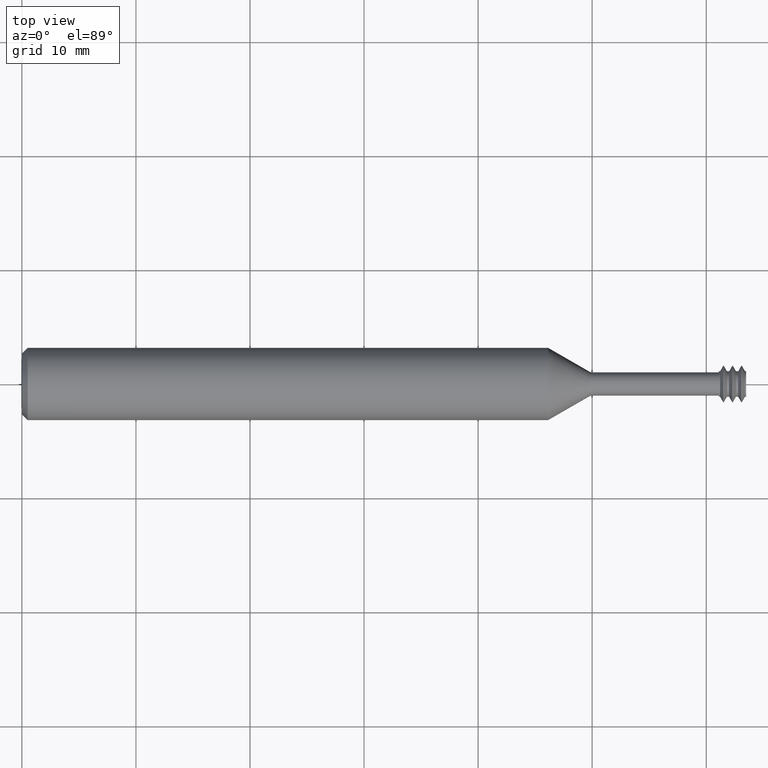
[diagram: clean part render]
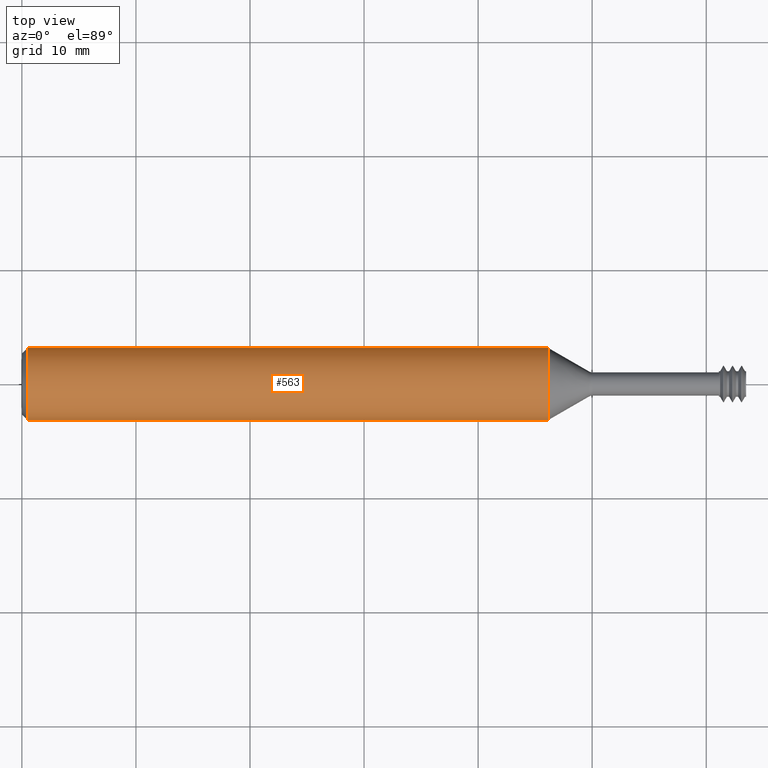
[diagram: same view with one face highlighted and labeled with its STEP entity id]
A machine part, top view. The second image highlights one B-rep face of the part: STEP entity #563.
In plain terms, the highlighted cylindrical surface (edge-blend (fillet) strip) has radius 3.1712 mm, axis along (-1, 0, -0).
Its self-contained STEP definition (entity closure, byte-faithful):
#1 = DIRECTION ( 'NONE',  ( 0.000000000000000000, -1.000000000000000000, 0.000000000000000000 ) ) ;
#7 = CARTESIAN_POINT ( 'NONE',  ( 1.816336759167003656, 0.1248500000000000026, 1.528971528735470422E-17 ) ) ;
#28 = EDGE_CURVE ( 'NONE', #118, #49, #745, .T. ) ;
#49 = VERTEX_POINT ( 'NONE', #7 ) ;
#66 = EDGE_CURVE ( 'NONE', #118, #393, #719, .T. ) ;
#89 = CARTESIAN_POINT ( 'NONE',  ( 2.406000000000000139, 3.796279696849373925E-18, 0.000000000000000000 ) ) ;
#91 = DIRECTION ( 'NONE',  ( -1.000000000000000000, 3.312725351696573770E-18, -0.000000000000000000 ) ) ;
#99 = VECTOR ( 'NONE', #106, 39.37007874015748143 ) ;
#101 = LINE ( 'NONE', #893, #99 ) ;
#106 = DIRECTION ( 'NONE',  ( -1.000000000000000000, 3.312725351696573770E-18, -0.000000000000000000 ) ) ;
#109 = ORIENTED_EDGE ( 'NONE', *, *, #182, .T. ) ;
#114 = EDGE_CURVE ( 'NONE', #393, #979, #787, .T. ) ;
#118 = VERTEX_POINT ( 'NONE', #733 ) ;
#163 = DIRECTION ( 'NONE',  ( -1.000000000000000000, 3.312725351696573770E-18, -0.000000000000000000 ) ) ;
#182 = EDGE_CURVE ( 'NONE', #49, #979, #101, .T. ) ;
#212 = EDGE_LOOP ( 'NONE', ( #689, #109, #847, #788 ) ) ;
#321 = VECTOR ( 'NONE', #808, 39.37007874015748143 ) ;
#328 = DIRECTION ( 'NONE',  ( -1.000000000000000000, 3.312725351696573770E-18, -0.000000000000000000 ) ) ;
#334 = FACE_OUTER_BOUND ( 'NONE', #212, .T. ) ;
#364 = CARTESIAN_POINT ( 'NONE',  ( 0.02000000000000005940, -0.1248499999999999610, 1.528971528735470422E-17 ) ) ;
#393 = VERTEX_POINT ( 'NONE', #364 ) ;
#563 = ADVANCED_FACE ( 'NONE', ( #334 ), #665, .T. ) ;
#631 = AXIS2_PLACEMENT_3D ( 'NONE', #946, #91, #1 ) ;
#633 = CARTESIAN_POINT ( 'NONE',  ( 1.816336759167003656, 5.749672063720403816E-18, 0.000000000000000000 ) ) ;
#665 = CYLINDRICAL_SURFACE ( 'NONE', #841, 0.1248500000000000026 ) ;
#689 = ORIENTED_EDGE ( 'NONE', *, *, #28, .T. ) ;
#719 = LINE ( 'NONE', #883, #321 ) ;
#733 = CARTESIAN_POINT ( 'NONE',  ( 1.816336759167003656, -0.1248500000000000026, 0.000000000000000000 ) ) ;
#745 = CIRCLE ( 'NONE', #832, 0.1248500000000000026 ) ;
#787 = CIRCLE ( 'NONE', #631, 0.1248500000000000026 ) ;
#788 = ORIENTED_EDGE ( 'NONE', *, *, #66, .F. ) ;
#808 = DIRECTION ( 'NONE',  ( -1.000000000000000000, 3.312725351696573770E-18, -0.000000000000000000 ) ) ;
#832 = AXIS2_PLACEMENT_3D ( 'NONE', #633, #163, #951 ) ;
#836 = DIRECTION ( 'NONE',  ( 0.000000000000000000, -1.000000000000000000, 0.000000000000000000 ) ) ;
#841 = AXIS2_PLACEMENT_3D ( 'NONE', #89, #328, #836 ) ;
#847 = ORIENTED_EDGE ( 'NONE', *, *, #114, .F. ) ;
#848 = CARTESIAN_POINT ( 'NONE',  ( 0.02000000000000005940, 0.1248500000000000026, 0.000000000000000000 ) ) ;
#883 = CARTESIAN_POINT ( 'NONE',  ( 2.406000000000000139, -0.1248500000000000026, 0.000000000000000000 ) ) ;
#893 = CARTESIAN_POINT ( 'NONE',  ( 2.406000000000000139, 0.1248500000000000026, 1.528971528735470422E-17 ) ) ;
#946 = CARTESIAN_POINT ( 'NONE',  ( 0.02000000000000005940, 1.170044238599739941E-17, 0.000000000000000000 ) ) ;
#951 = DIRECTION ( 'NONE',  ( 0.000000000000000000, -1.000000000000000000, 0.000000000000000000 ) ) ;
#979 = VERTEX_POINT ( 'NONE', #848 ) ;